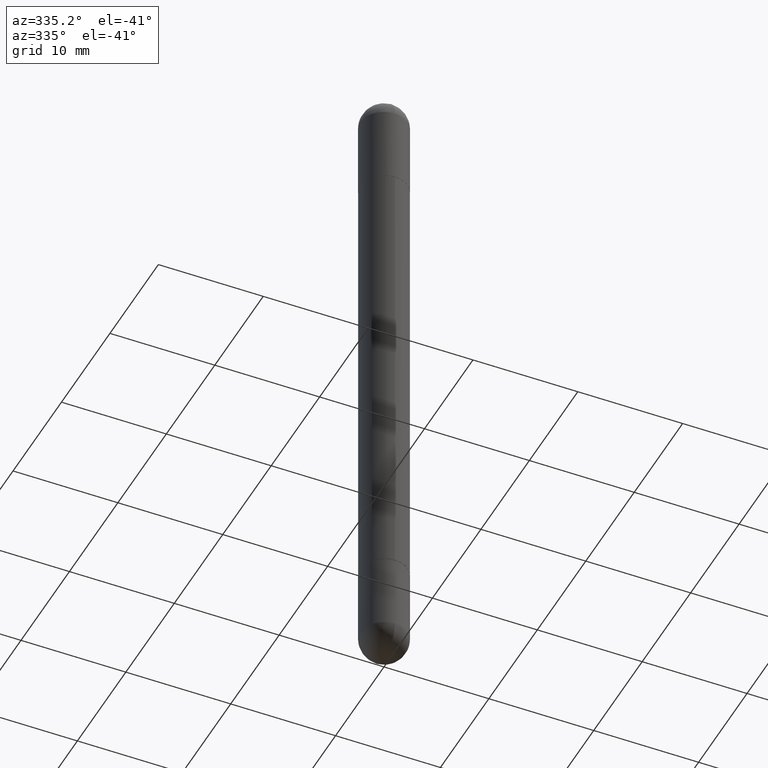
[diagram: clean part render]
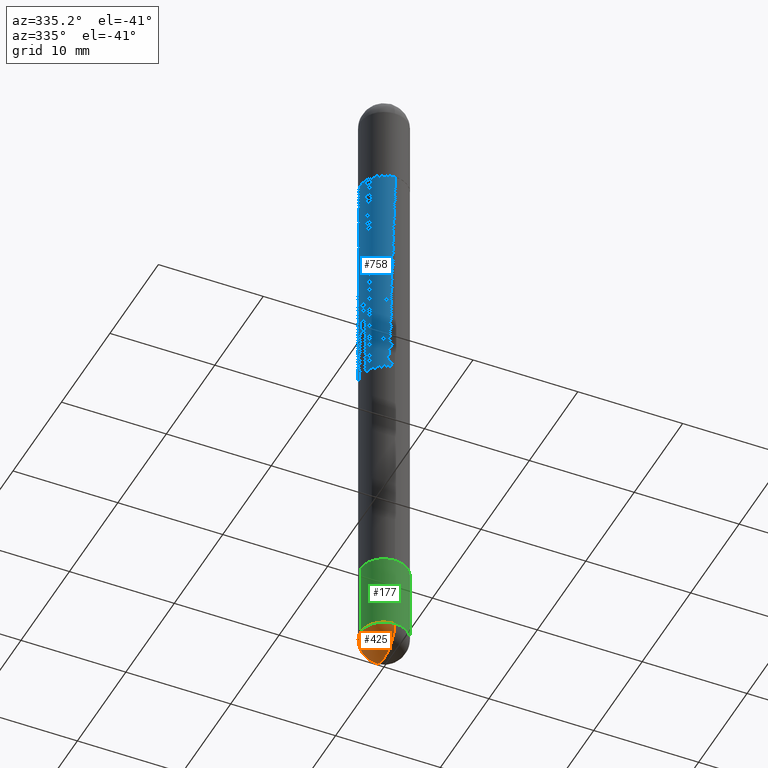
[diagram: same view with three faces highlighted in distinct colors, each labeled with its STEP entity id]
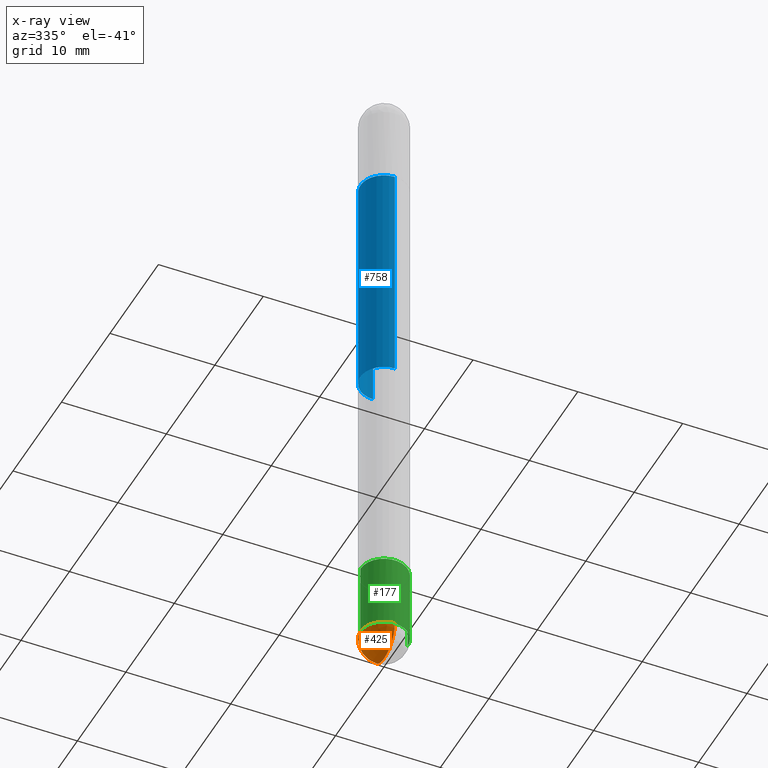
[diagram: x-ray of the same camera — body ghosted, the three highlighted faces saturated]
A machine part, auxiliary view with three faces highlighted in distinct colors.
The next image is the same camera in x-ray (body ghosted, the three faces saturated) — at least one of them is partly hidden behind the body in this view.
Their STEP definitions:

[orange] entity #425 — the highlighted spherical surface has radius 2.2504 mm.
#27 = AXIS2_PLACEMENT_3D ( 'NONE', #440, #696, #67 ) ;
#34 = VERTEX_POINT ( 'NONE', #708 ) ;
#67 = DIRECTION ( 'NONE',  ( 6.982962677686265922E-15, 1.000000000000000000, -3.083349879982230831E-15 ) ) ;
#73 = EDGE_CURVE ( 'NONE', #476, #34, #610, .T. ) ;
#90 = CIRCLE ( 'NONE', #349, 0.08860000000000022025 ) ;
#148 = AXIS2_PLACEMENT_3D ( 'NONE', #658, #575, #715 ) ;
#151 = ORIENTED_EDGE ( 'NONE', *, *, #247, .F. ) ;
#160 = CIRCLE ( 'NONE', #556, 0.08859999999999999820 ) ;
#163 = EDGE_CURVE ( 'NONE', #476, #493, #90, .T. ) ;
#193 = SPHERICAL_SURFACE ( 'NONE', #27, 0.08860000000000022025 ) ;
#247 = EDGE_CURVE ( 'NONE', #493, #289, #160, .T. ) ;
#251 = AXIS2_PLACEMENT_3D ( 'NONE', #454, #565, #631 ) ;
#253 = CARTESIAN_POINT ( 'NONE',  ( -0.08859999999999999820, -7.222800667174788168E-15, -2.391700000000000159 ) ) ;
#289 = VERTEX_POINT ( 'NONE', #253 ) ;
#311 = CARTESIAN_POINT ( 'NONE',  ( 5.848827743752992709E-29, -8.350575918111152281E-15, -2.391700000000000159 ) ) ;
#327 = ORIENTED_EDGE ( 'NONE', *, *, #73, .T. ) ;
#349 = AXIS2_PLACEMENT_3D ( 'NONE', #418, #355, #602 ) ;
#355 = DIRECTION ( 'NONE',  ( 1.000000000000000000, -6.982962677686265922E-15, 4.883557194083112340E-29 ) ) ;
#357 = CARTESIAN_POINT ( 'NONE',  ( 5.738164888728174729E-29, -9.128678347552484260E-15, -2.480300000000000171 ) ) ;
#418 = CARTESIAN_POINT ( 'NONE',  ( 5.517707965839106462E-29, -8.824758286251204155E-15, -2.391700000000000159 ) ) ;
#425 = ADVANCED_FACE ( 'NONE', ( #753 ), #193, .T. ) ;
#429 = DIRECTION ( 'NONE',  ( -2.445468806185136597E-29, 3.491481338843145583E-15, 1.000000000000000000 ) ) ;
#440 = CARTESIAN_POINT ( 'NONE',  ( 5.517707965839106462E-29, -8.824758286251204155E-15, -2.391700000000000159 ) ) ;
#454 = CARTESIAN_POINT ( 'NONE',  ( 5.848827743752992709E-29, -8.350575918111152281E-15, -2.391700000000000159 ) ) ;
#476 = VERTEX_POINT ( 'NONE', #357 ) ;
#493 = VERTEX_POINT ( 'NONE', #756 ) ;
#523 = EDGE_LOOP ( 'NONE', ( #728, #327, #742, #151 ) ) ;
#556 = AXIS2_PLACEMENT_3D ( 'NONE', #311, #429, #685 ) ;
#565 = DIRECTION ( 'NONE',  ( -2.445468806185136597E-29, 3.491481338843145583E-15, 1.000000000000000000 ) ) ;
#572 = EDGE_CURVE ( 'NONE', #289, #34, #773, .T. ) ;
#575 = DIRECTION ( 'NONE',  ( -1.000000000000000000, 7.105427357601001070E-15, -4.926315508542082329E-29 ) ) ;
#602 = DIRECTION ( 'NONE',  ( 6.982962677686265133E-15, 1.000000000000000000, 0.000000000000000000 ) ) ;
#610 = CIRCLE ( 'NONE', #148, 0.08860000000000022025 ) ;
#631 = DIRECTION ( 'NONE',  ( 1.000000000000000000, -6.982962677686269077E-15, 0.000000000000000000 ) ) ;
#658 = CARTESIAN_POINT ( 'NONE',  ( 5.517707965839106462E-29, -8.824758286251204155E-15, -2.391700000000000159 ) ) ;
#685 = DIRECTION ( 'NONE',  ( 1.000000000000000000, -6.982962677686269077E-15, 0.000000000000000000 ) ) ;
#696 = DIRECTION ( 'NONE',  ( -1.000000000000000000, 6.982962677686265922E-15, -4.883557194083112901E-29 ) ) ;
#708 = CARTESIAN_POINT ( 'NONE',  ( -6.295408638833925456E-16, -0.08860000000000868570, -2.391700000000000159 ) ) ;
#715 = DIRECTION ( 'NONE',  ( -7.105427357601001070E-15, -1.000000000000000000, 0.000000000000000000 ) ) ;
#728 = ORIENTED_EDGE ( 'NONE', *, *, #163, .F. ) ;
#742 = ORIENTED_EDGE ( 'NONE', *, *, #572, .F. ) ;
#753 = FACE_OUTER_BOUND ( 'NONE', #523, .T. ) ;
#756 = CARTESIAN_POINT ( 'NONE',  ( 6.186904932430607369E-16, 0.08859999999999150500, -2.391700000000000603 ) ) ;
#773 = CIRCLE ( 'NONE', #251, 0.08859999999999999820 ) ;

[blue] entity #758 — the highlighted cylindrical surface (edge-blend (fillet) strip) has radius 2.2504 mm, axis along (-0, 0, -1).
#31 = AXIS2_PLACEMENT_3D ( 'NONE', #131, #377, #507 ) ;
#54 = LINE ( 'NONE', #189, #812 ) ;
#93 = FACE_OUTER_BOUND ( 'NONE', #643, .T. ) ;
#104 = LINE ( 'NONE', #215, #295 ) ;
#107 = ORIENTED_EDGE ( 'NONE', *, *, #456, .T. ) ;
#113 = DIRECTION ( 'NONE',  ( -2.445161581846673899E-29, 3.491921301581948047E-15, -1.000000000000000000 ) ) ;
#131 = CARTESIAN_POINT ( 'NONE',  ( 5.147798678261803388E-29, -7.351541916220477463E-15, -0.3749999999999996669 ) ) ;
#145 = ORIENTED_EDGE ( 'NONE', *, *, #743, .F. ) ;
#147 = AXIS2_PLACEMENT_3D ( 'NONE', #164, #261, #569 ) ;
#155 = CARTESIAN_POINT ( 'NONE',  ( -6.186904932429535505E-16, -0.08860000000000764486, -0.3750000000000000555 ) ) ;
#164 = CARTESIAN_POINT ( 'NONE',  ( 0.000000000000000000, 0.000000000000000000, -2.480300000000000171 ) ) ;
#179 = VERTEX_POINT ( 'NONE', #451 ) ;
#189 = CARTESIAN_POINT ( 'NONE',  ( 6.078401226025584357E-16, 0.08860000000000010922, -2.480299999999999727 ) ) ;
#215 = CARTESIAN_POINT ( 'NONE',  ( -6.186904932430039390E-16, -0.08860000000000010922, -2.480300000000001059 ) ) ;
#233 = EDGE_CURVE ( 'NONE', #179, #682, #759, .T. ) ;
#261 = DIRECTION ( 'NONE',  ( -2.445161581846673899E-29, 3.491921301581947653E-15, -1.000000000000000000 ) ) ;
#273 = CARTESIAN_POINT ( 'NONE',  ( -6.186904932429630168E-16, -0.08860000000000445297, -1.240150000000000086 ) ) ;
#295 = VECTOR ( 'NONE', #780, 39.37007874015748143 ) ;
#298 = ORIENTED_EDGE ( 'NONE', *, *, #350, .F. ) ;
#302 = CARTESIAN_POINT ( 'NONE',  ( 6.078401226026096131E-16, 0.08859999999999577935, -1.240150000000000086 ) ) ;
#307 = DIRECTION ( 'NONE',  ( -1.000000000000000000, 0.000000000000000000, 0.000000000000000000 ) ) ;
#320 = CIRCLE ( 'NONE', #378, 0.08860000000000010922 ) ;
#342 = CARTESIAN_POINT ( 'NONE',  ( 3.032367135727152857E-29, -4.330506202156853128E-15, -1.240150000000000086 ) ) ;
#350 = EDGE_CURVE ( 'NONE', #777, #817, #320, .T. ) ;
#377 = DIRECTION ( 'NONE',  ( 2.445161581846673899E-29, -3.491921301581947653E-15, 1.000000000000000000 ) ) ;
#378 = AXIS2_PLACEMENT_3D ( 'NONE', #342, #666, #307 ) ;
#451 = CARTESIAN_POINT ( 'NONE',  ( 6.078401226026106978E-16, 0.08859999999999286502, -0.3749999999999993339 ) ) ;
#456 = EDGE_CURVE ( 'NONE', #179, #817, #54, .T. ) ;
#507 = DIRECTION ( 'NONE',  ( -6.982962677686265922E-15, -1.000000000000000000, -3.854187349977787355E-15 ) ) ;
#569 = DIRECTION ( 'NONE',  ( -6.982962677686265922E-15, -1.000000000000000000, -6.166699759964469551E-15 ) ) ;
#643 = EDGE_LOOP ( 'NONE', ( #727, #107, #298, #145 ) ) ;
#666 = DIRECTION ( 'NONE',  ( -0.000000000000000000, -0.000000000000000000, -1.000000000000000000 ) ) ;
#682 = VERTEX_POINT ( 'NONE', #155 ) ;
#727 = ORIENTED_EDGE ( 'NONE', *, *, #233, .F. ) ;
#729 = CYLINDRICAL_SURFACE ( 'NONE', #147, 0.08860000000000010922 ) ;
#743 = EDGE_CURVE ( 'NONE', #682, #777, #104, .T. ) ;
#758 = ADVANCED_FACE ( 'NONE', ( #93 ), #729, .T. ) ;
#759 = CIRCLE ( 'NONE', #31, 0.08860000000000024800 ) ;
#777 = VERTEX_POINT ( 'NONE', #273 ) ;
#780 = DIRECTION ( 'NONE',  ( -2.445161581846673899E-29, 3.491921301581948047E-15, -1.000000000000000000 ) ) ;
#812 = VECTOR ( 'NONE', #113, 39.37007874015748143 ) ;
#817 = VERTEX_POINT ( 'NONE', #302 ) ;

[green] entity #177 — the highlighted cylindrical surface (edge-blend (fillet) strip) has radius 2.2504 mm, axis along (-0, 0, 1).
#8 = CARTESIAN_POINT ( 'NONE',  ( 0.08859999999999999820, -8.471032024301239972E-15, -2.391700000000000159 ) ) ;
#34 = VERTEX_POINT ( 'NONE', #708 ) ;
#40 = CARTESIAN_POINT ( 'NONE',  ( 5.848827743752992709E-29, -8.350575918111152281E-15, -2.391700000000000159 ) ) ;
#42 = AXIS2_PLACEMENT_3D ( 'NONE', #380, #129, #634 ) ;
#52 = VERTEX_POINT ( 'NONE', #8 ) ;
#57 = DIRECTION ( 'NONE',  ( -2.445468806185136597E-29, 3.491481338843145583E-15, 1.000000000000000000 ) ) ;
#62 = CARTESIAN_POINT ( 'NONE',  ( 0.08859999999999999820, -7.972797637248321554E-15, -2.106300000000000505 ) ) ;
#78 = EDGE_CURVE ( 'NONE', #52, #229, #785, .T. ) ;
#82 = DIRECTION ( 'NONE',  ( -2.445468806185136877E-29, 3.491481338843145188E-15, 1.000000000000000000 ) ) ;
#109 = ORIENTED_EDGE ( 'NONE', *, *, #567, .F. ) ;
#125 = DIRECTION ( 'NONE',  ( -2.445468806185136597E-29, 3.491481338843145583E-15, 1.000000000000000000 ) ) ;
#129 = DIRECTION ( 'NONE',  ( -2.445468806185136597E-29, 3.491481338843145583E-15, 1.000000000000000000 ) ) ;
#137 = DIRECTION ( 'NONE',  ( 1.000000000000000000, -6.982962677686269077E-15, 0.000000000000000000 ) ) ;
#156 = EDGE_LOOP ( 'NONE', ( #680, #573, #210, #213, #109 ) ) ;
#165 = EDGE_CURVE ( 'NONE', #34, #52, #570, .T. ) ;
#177 = ADVANCED_FACE ( 'NONE', ( #684 ), #434, .T. ) ;
#210 = ORIENTED_EDGE ( 'NONE', *, *, #165, .T. ) ;
#213 = ORIENTED_EDGE ( 'NONE', *, *, #78, .T. ) ;
#229 = VERTEX_POINT ( 'NONE', #62 ) ;
#230 = VERTEX_POINT ( 'NONE', #751 ) ;
#250 = VECTOR ( 'NONE', #82, 39.37007874015748143 ) ;
#251 = AXIS2_PLACEMENT_3D ( 'NONE', #454, #565, #631 ) ;
#253 = CARTESIAN_POINT ( 'NONE',  ( -0.08859999999999999820, -7.222800667174788168E-15, -2.391700000000000159 ) ) ;
#289 = VERTEX_POINT ( 'NONE', #253 ) ;
#316 = CARTESIAN_POINT ( 'NONE',  ( 0.000000000000000000, 0.000000000000000000, 0.000000000000000000 ) ) ;
#321 = AXIS2_PLACEMENT_3D ( 'NONE', #316, #125, #689 ) ;
#332 = CIRCLE ( 'NONE', #42, 0.08859999999999999820 ) ;
#360 = DIRECTION ( 'NONE',  ( -2.445468806185136877E-29, 3.491481338843145188E-15, 1.000000000000000000 ) ) ;
#380 = CARTESIAN_POINT ( 'NONE',  ( 5.150890946467754134E-29, -7.354107144005318601E-15, -2.106300000000000505 ) ) ;
#434 = CYLINDRICAL_SURFACE ( 'NONE', #321, 0.08859999999999999820 ) ;
#439 = EDGE_CURVE ( 'NONE', #289, #230, #598, .T. ) ;
#453 = CARTESIAN_POINT ( 'NONE',  ( 0.08859999999999999820, -6.186904932430032487E-16, 4.320292623355198765E-30 ) ) ;
#454 = CARTESIAN_POINT ( 'NONE',  ( 5.848827743752992709E-29, -8.350575918111152281E-15, -2.391700000000000159 ) ) ;
#487 = CARTESIAN_POINT ( 'NONE',  ( -0.08859999999999999820, 6.295408638834487519E-16, -4.358176489965846267E-30 ) ) ;
#540 = VECTOR ( 'NONE', #360, 39.37007874015748143 ) ;
#565 = DIRECTION ( 'NONE',  ( -2.445468806185136597E-29, 3.491481338843145583E-15, 1.000000000000000000 ) ) ;
#567 = EDGE_CURVE ( 'NONE', #230, #229, #332, .T. ) ;
#570 = CIRCLE ( 'NONE', #642, 0.08859999999999999820 ) ;
#572 = EDGE_CURVE ( 'NONE', #289, #34, #773, .T. ) ;
#573 = ORIENTED_EDGE ( 'NONE', *, *, #572, .T. ) ;
#598 = LINE ( 'NONE', #487, #540 ) ;
#631 = DIRECTION ( 'NONE',  ( 1.000000000000000000, -6.982962677686269077E-15, 0.000000000000000000 ) ) ;
#634 = DIRECTION ( 'NONE',  ( 1.000000000000000000, -6.982962677686269077E-15, 0.000000000000000000 ) ) ;
#642 = AXIS2_PLACEMENT_3D ( 'NONE', #40, #57, #137 ) ;
#680 = ORIENTED_EDGE ( 'NONE', *, *, #439, .F. ) ;
#684 = FACE_OUTER_BOUND ( 'NONE', #156, .T. ) ;
#689 = DIRECTION ( 'NONE',  ( 1.000000000000000000, -6.982962677686266711E-15, 4.876176775795935232E-29 ) ) ;
#708 = CARTESIAN_POINT ( 'NONE',  ( -6.295408638833925456E-16, -0.08860000000000868570, -2.391700000000000159 ) ) ;
#751 = CARTESIAN_POINT ( 'NONE',  ( -0.08859999999999999820, -7.222800667174788168E-15, -2.106300000000000505 ) ) ;
#773 = CIRCLE ( 'NONE', #251, 0.08859999999999999820 ) ;
#785 = LINE ( 'NONE', #453, #250 ) ;